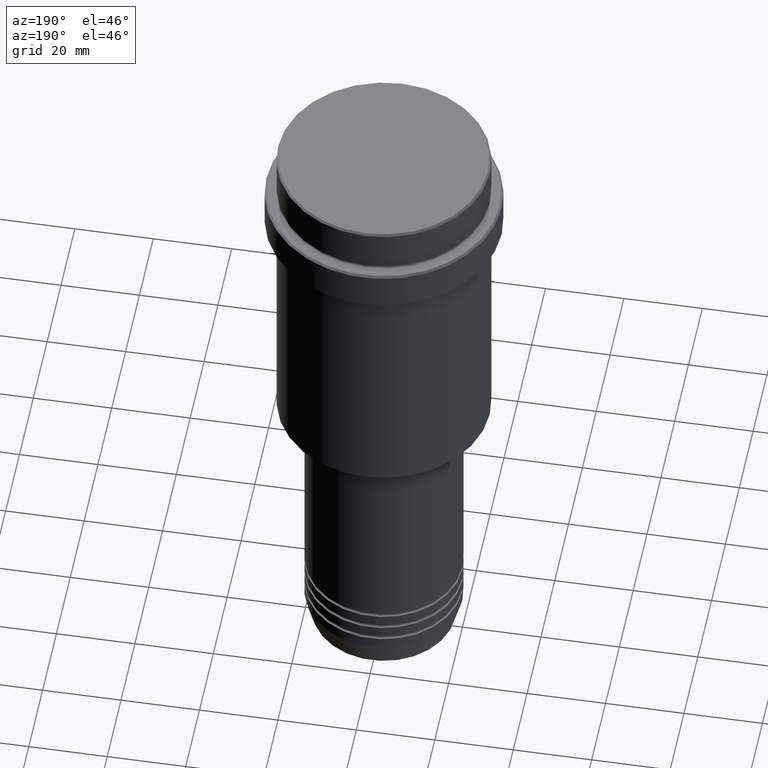
[diagram: clean part render]
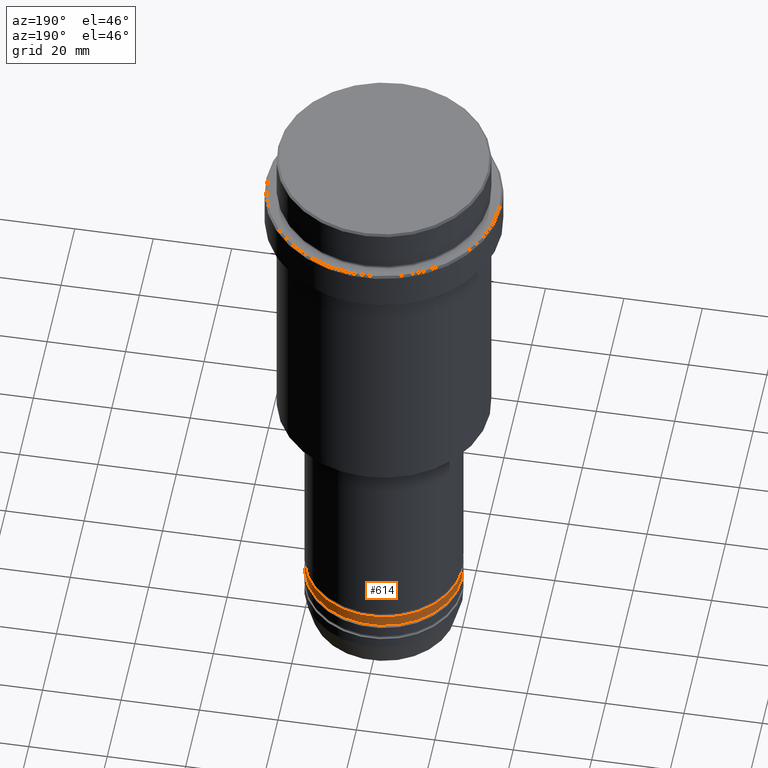
[diagram: same view with one face highlighted and labeled with its STEP entity id]
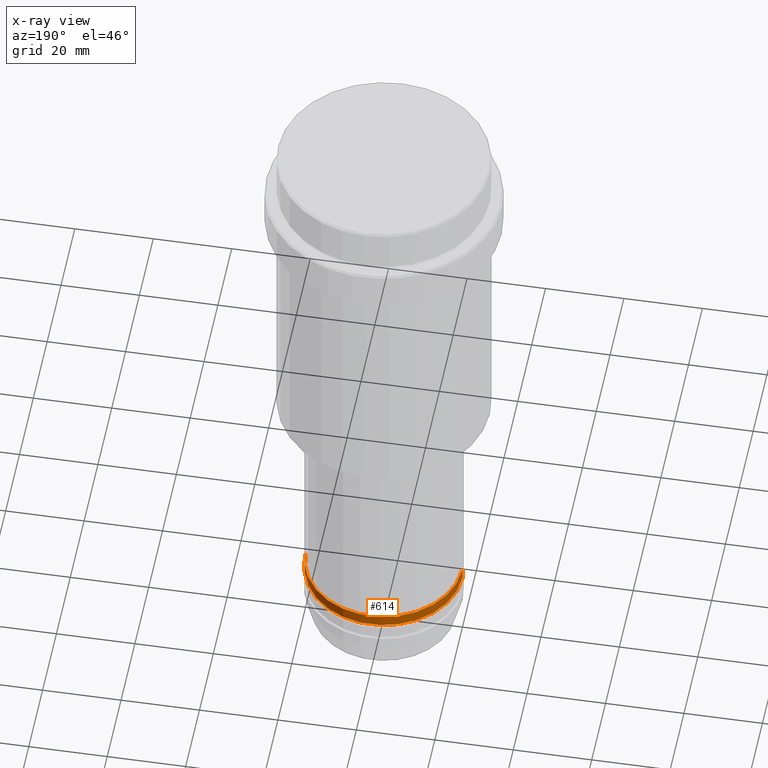
[diagram: x-ray of the same camera — body ghosted, the highlighted face saturated]
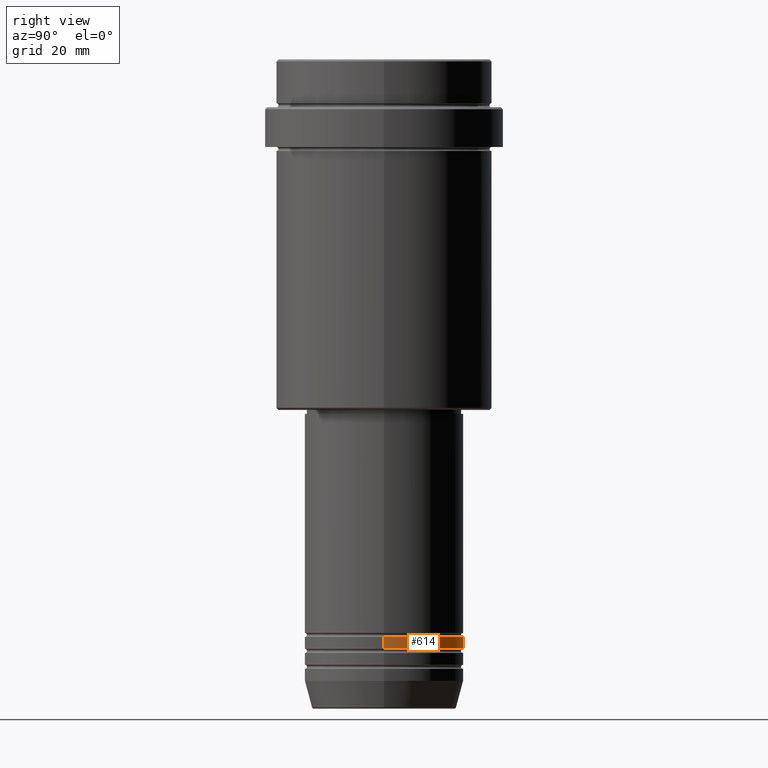
[diagram: same view with one face highlighted and labeled with its STEP entity id]
A machine part, auxiliary view. The second image highlights one B-rep face of the part: STEP entity #614.
The next image is the same camera in x-ray: the body ghosted, the highlighted face saturated — about 0% of this face is hidden behind the body in this view.
A second angle (right view) of the same face is appended — the face is thin or edge-on in the first view.
In plain terms, the highlighted cylindrical surface (partial cylindrical patch) has radius 20 mm, axis along (-0, -0, 1).
Its self-contained STEP definition (entity closure, byte-faithful):
#135 = CYLINDRICAL_SURFACE ( 'NONE', #522, 20.00000000000000000 ) ;
#194 = VECTOR ( 'NONE', #1313, 1000.000000000000000 ) ;
#252 = FACE_OUTER_BOUND ( 'NONE', #589, .T. ) ;
#329 = DIRECTION ( 'NONE',  ( -0.000000000000000000, -0.000000000000000000, 1.000000000000000000 ) ) ;
#352 = VECTOR ( 'NONE', #876, 1000.000000000000000 ) ;
#360 = ORIENTED_EDGE ( 'NONE', *, *, #1248, .F. ) ;
#376 = CIRCLE ( 'NONE', #953, 20.00000000000000000 ) ;
#460 = EDGE_CURVE ( 'NONE', #1414, #1277, #376, .T. ) ;
#522 = AXIS2_PLACEMENT_3D ( 'NONE', #1215, #562, #1225 ) ;
#550 = CARTESIAN_POINT ( 'NONE',  ( -20.00000000000000000, 2.449293598294706513E-15, 0.000000000000000000 ) ) ;
#562 = DIRECTION ( 'NONE',  ( -0.000000000000000000, -0.000000000000000000, 1.000000000000000000 ) ) ;
#589 = EDGE_LOOP ( 'NONE', ( #914, #968, #360, #946 ) ) ;
#614 = ADVANCED_FACE ( 'NONE', ( #252 ), #135, .T. ) ;
#644 = DIRECTION ( 'NONE',  ( 1.000000000000000000, 0.000000000000000000, 0.000000000000000000 ) ) ;
#728 = DIRECTION ( 'NONE',  ( -0.000000000000000000, -0.000000000000000000, 1.000000000000000000 ) ) ;
#760 = CARTESIAN_POINT ( 'NONE',  ( 20.00000000000000000, 0.000000000000000000, 0.000000000000000000 ) ) ;
#765 = LINE ( 'NONE', #760, #194 ) ;
#845 = CARTESIAN_POINT ( 'NONE',  ( 0.000000000000000000, 0.000000000000000000, -144.9999999999999147 ) ) ;
#876 = DIRECTION ( 'NONE',  ( -0.000000000000000000, -0.000000000000000000, 1.000000000000000000 ) ) ;
#914 = ORIENTED_EDGE ( 'NONE', *, *, #460, .T. ) ;
#942 = EDGE_CURVE ( 'NONE', #1277, #1284, #1416, .T. ) ;
#946 = ORIENTED_EDGE ( 'NONE', *, *, #1326, .F. ) ;
#953 = AXIS2_PLACEMENT_3D ( 'NONE', #1096, #329, #644 ) ;
#968 = ORIENTED_EDGE ( 'NONE', *, *, #942, .T. ) ;
#1096 = CARTESIAN_POINT ( 'NONE',  ( 0.000000000000000000, 0.000000000000000000, -147.9999999999999147 ) ) ;
#1189 = CARTESIAN_POINT ( 'NONE',  ( 20.00000000000000000, 0.000000000000000000, -144.9999999999999147 ) ) ;
#1215 = CARTESIAN_POINT ( 'NONE',  ( 0.000000000000000000, 0.000000000000000000, 0.000000000000000000 ) ) ;
#1219 = CIRCLE ( 'NONE', #1290, 20.00000000000000000 ) ;
#1225 = DIRECTION ( 'NONE',  ( 1.000000000000000000, 0.000000000000000000, 0.000000000000000000 ) ) ;
#1248 = EDGE_CURVE ( 'NONE', #1334, #1284, #1219, .T. ) ;
#1259 = CARTESIAN_POINT ( 'NONE',  ( -20.00000000000000000, 2.449293598294706513E-15, -147.9999999999999147 ) ) ;
#1276 = DIRECTION ( 'NONE',  ( 1.000000000000000000, 0.000000000000000000, 0.000000000000000000 ) ) ;
#1277 = VERTEX_POINT ( 'NONE', #1259 ) ;
#1284 = VERTEX_POINT ( 'NONE', #1325 ) ;
#1290 = AXIS2_PLACEMENT_3D ( 'NONE', #845, #728, #1276 ) ;
#1298 = CARTESIAN_POINT ( 'NONE',  ( 20.00000000000000000, 0.000000000000000000, -147.9999999999999147 ) ) ;
#1313 = DIRECTION ( 'NONE',  ( -0.000000000000000000, -0.000000000000000000, 1.000000000000000000 ) ) ;
#1325 = CARTESIAN_POINT ( 'NONE',  ( -20.00000000000000000, 2.449293598294706513E-15, -144.9999999999999147 ) ) ;
#1326 = EDGE_CURVE ( 'NONE', #1414, #1334, #765, .T. ) ;
#1334 = VERTEX_POINT ( 'NONE', #1189 ) ;
#1414 = VERTEX_POINT ( 'NONE', #1298 ) ;
#1416 = LINE ( 'NONE', #550, #352 ) ;